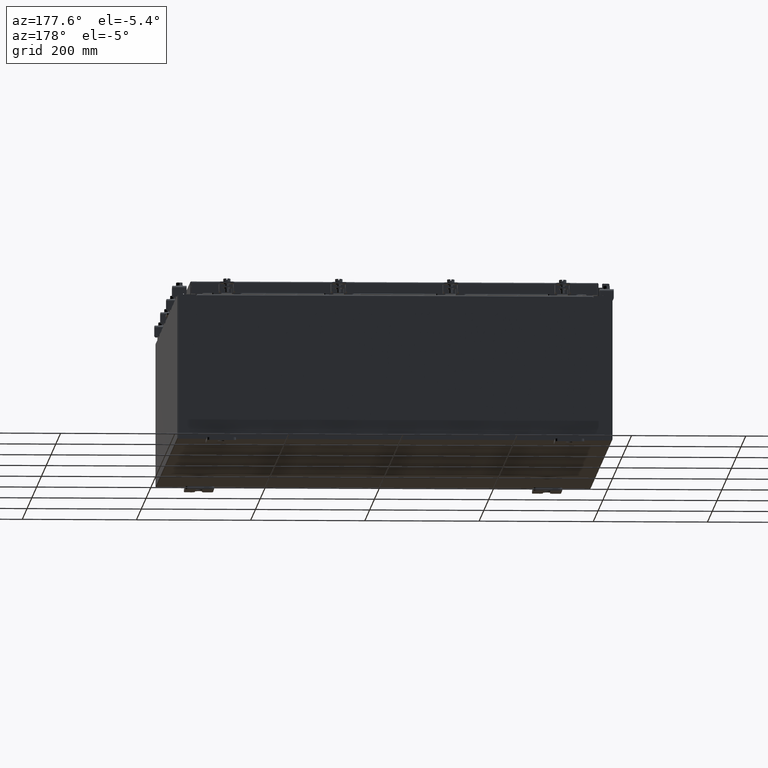
[diagram: clean part render]
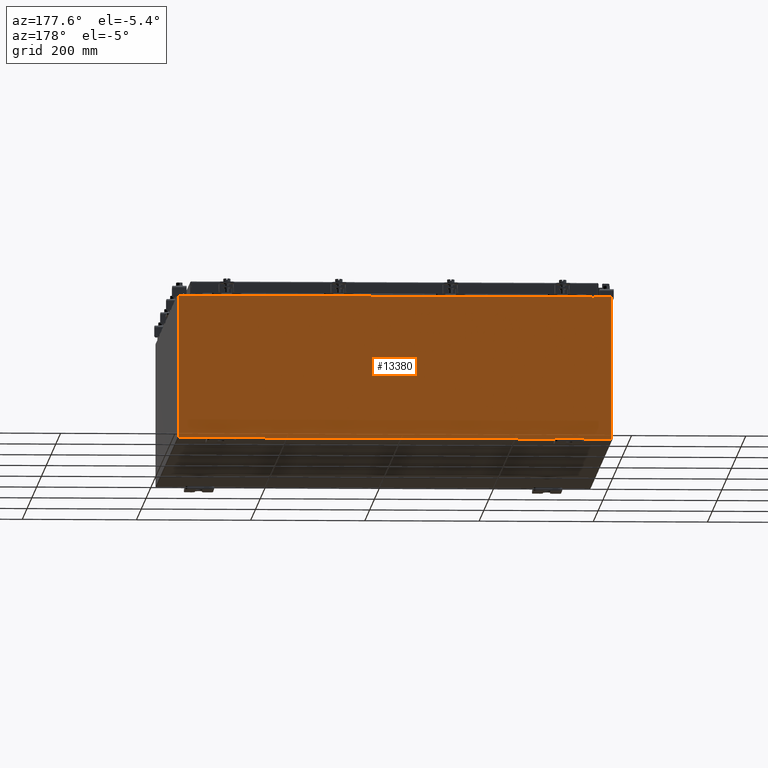
[diagram: same view with one face highlighted and labeled with its STEP entity id]
A machine part, auxiliary view. The second image highlights one B-rep face of the part: STEP entity #13380.
In plain terms, the highlighted planar face has unit normal (0, -1, 0).
Its self-contained STEP definition (entity closure, byte-faithful):
#215 = CIRCLE ( 'NONE', #17016, 0.01867499999999949400 ) ;
#441 = CARTESIAN_POINT ( 'NONE',  ( 13.67454999999978500, -0.0000000000000000000, -5.935537951421795000E-013 ) ) ;
#961 = VERTEX_POINT ( 'NONE', #13682 ) ;
#1255 = VECTOR ( 'NONE', #6354, 39.37007874015748100 ) ;
#1292 = CARTESIAN_POINT ( 'NONE',  ( -13.63720000000000000, -0.0000000000000000000, 0.0000000000000000000 ) ) ;
#1616 = CIRCLE ( 'NONE', #14262, 0.01867499999999949400 ) ;
#1868 = LINE ( 'NONE', #17819, #10542 ) ;
#2062 = VERTEX_POINT ( 'NONE', #14688 ) ;
#2189 = VERTEX_POINT ( 'NONE', #17457 ) ;
#2228 = EDGE_CURVE ( 'NONE', #12325, #16779, #1868, .T. ) ;
#2457 = CARTESIAN_POINT ( 'NONE',  ( 14.92529999999999800, 0.0000000000000000000, -4.925300000000000000 ) ) ;
#2751 = ORIENTED_EDGE ( 'NONE', *, *, #2228, .T. ) ;
#3196 = VECTOR ( 'NONE', #9836, 39.37007874015748100 ) ;
#3371 = EDGE_CURVE ( 'NONE', #2062, #22442, #21653, .T. ) ;
#3392 = VERTEX_POINT ( 'NONE', #9086 ) ;
#3538 = EDGE_CURVE ( 'NONE', #3392, #2062, #19473, .T. ) ;
#4634 = CARTESIAN_POINT ( 'NONE',  ( -13.63720000000000400, -7.171100983368691200E-016, 4.912300000000000100 ) ) ;
#4664 = ORIENTED_EDGE ( 'NONE', *, *, #20067, .F. ) ;
#4784 = VERTEX_POINT ( 'NONE', #12033 ) ;
#4810 = ORIENTED_EDGE ( 'NONE', *, *, #20111, .F. ) ;
#5221 = DIRECTION ( 'NONE',  ( 0.0000000000000000000, -0.0000000000000000000, -1.000000000000000000 ) ) ;
#5325 = CARTESIAN_POINT ( 'NONE',  ( -14.92530000000000200, 0.0000000000000000000, 4.925300000000000000 ) ) ;
#5353 = DIRECTION ( 'NONE',  ( -0.0000000000000000000, -0.0000000000000000000, 1.000000000000000000 ) ) ;
#5359 = AXIS2_PLACEMENT_3D ( 'NONE', #17320, #15638, #5221 ) ;
#5772 = CARTESIAN_POINT ( 'NONE',  ( -13.67455000000000000, -0.0000000000000000000, 0.0000000000000000000 ) ) ;
#5984 = DIRECTION ( 'NONE',  ( 0.0000000000000000000, 0.0000000000000000000, 1.000000000000000000 ) ) ;
#6019 = EDGE_CURVE ( 'NONE', #2189, #18700, #7407, .T. ) ;
#6354 = DIRECTION ( 'NONE',  ( 1.000000000000000000, 0.0000000000000000000, 0.0000000000000000000 ) ) ;
#6482 = LINE ( 'NONE', #5772, #15173 ) ;
#6671 = CARTESIAN_POINT ( 'NONE',  ( 13.65587499999999800, 0.0000000000000000000, 4.874950000000000100 ) ) ;
#6880 = EDGE_LOOP ( 'NONE', ( #12264, #8047, #4664, #13789, #10513, #4810, #19324, #21758, #2751, #17268, #10297, #7154 ) ) ;
#7154 = ORIENTED_EDGE ( 'NONE', *, *, #3371, .T. ) ;
#7407 = LINE ( 'NONE', #441, #16094 ) ;
#7488 = LINE ( 'NONE', #18393, #20242 ) ;
#8006 = DIRECTION ( 'NONE',  ( 1.000000000000000000, 0.0000000000000000000, 0.0000000000000000000 ) ) ;
#8022 = DIRECTION ( 'NONE',  ( -4.340572780400004900E-014, 0.0000000000000000000, -1.000000000000000000 ) ) ;
#8027 = CARTESIAN_POINT ( 'NONE',  ( 13.67454999999999800, 0.0000000000000000000, 4.874950000000000100 ) ) ;
#8047 = ORIENTED_EDGE ( 'NONE', *, *, #13452, .F. ) ;
#8160 = EDGE_CURVE ( 'NONE', #2189, #12325, #7488, .T. ) ;
#8434 = DIRECTION ( 'NONE',  ( 0.0000000000000000000, 0.0000000000000000000, -1.000000000000000000 ) ) ;
#8967 = DIRECTION ( 'NONE',  ( -0.0000000000000000000, 1.000000000000000000, -0.0000000000000000000 ) ) ;
#9036 = CARTESIAN_POINT ( 'NONE',  ( -13.63720000000000000, -0.0000000000000000000, 4.874950000000000100 ) ) ;
#9086 = CARTESIAN_POINT ( 'NONE',  ( -14.92530000000000200, 0.0000000000000000000, -4.925300000000000000 ) ) ;
#9700 = CARTESIAN_POINT ( 'NONE',  ( -14.92530000000000200, 0.0000000000000000000, 4.925300000000000000 ) ) ;
#9836 = DIRECTION ( 'NONE',  ( 1.000000000000000000, 0.0000000000000000000, 0.0000000000000000000 ) ) ;
#10071 = CARTESIAN_POINT ( 'NONE',  ( -13.63720000000000000, -7.171100983368691200E-016, 4.912300000000000100 ) ) ;
#10297 = ORIENTED_EDGE ( 'NONE', *, *, #3538, .T. ) ;
#10513 = ORIENTED_EDGE ( 'NONE', *, *, #22296, .F. ) ;
#10520 = VECTOR ( 'NONE', #20729, 39.37007874015748100 ) ;
#10542 = VECTOR ( 'NONE', #21048, 39.37007874015748100 ) ;
#10918 = VERTEX_POINT ( 'NONE', #10071 ) ;
#11895 = CARTESIAN_POINT ( 'NONE',  ( 14.92529999999999800, 0.0000000000000000000, 4.925300000000000000 ) ) ;
#12033 = CARTESIAN_POINT ( 'NONE',  ( -13.67455000000000000, 0.0000000000000000000, 4.874950000000000100 ) ) ;
#12160 = CARTESIAN_POINT ( 'NONE',  ( -14.92530000000000200, 0.0000000000000000000, -4.925300000000000000 ) ) ;
#12264 = ORIENTED_EDGE ( 'NONE', *, *, #14176, .F. ) ;
#12325 = VERTEX_POINT ( 'NONE', #11895 ) ;
#13193 = VECTOR ( 'NONE', #5984, 39.37007874015748100 ) ;
#13380 = ADVANCED_FACE ( 'NONE', ( #21403 ), #13891, .F. ) ;
#13452 = EDGE_CURVE ( 'NONE', #13487, #4784, #215, .T. ) ;
#13487 = VERTEX_POINT ( 'NONE', #9036 ) ;
#13682 = CARTESIAN_POINT ( 'NONE',  ( 13.63719999999999800, 0.0000000000000000000, 4.912300000000000100 ) ) ;
#13730 = LINE ( 'NONE', #18123, #13193 ) ;
#13789 = ORIENTED_EDGE ( 'NONE', *, *, #15569, .T. ) ;
#13891 = PLANE ( 'NONE',  #5359 ) ;
#14176 = EDGE_CURVE ( 'NONE', #4784, #22442, #6482, .T. ) ;
#14262 = AXIS2_PLACEMENT_3D ( 'NONE', #6671, #18826, #8434 ) ;
#14310 = VECTOR ( 'NONE', #5353, 39.37007874015748100 ) ;
#14688 = CARTESIAN_POINT ( 'NONE',  ( -14.92530000000000200, 0.0000000000000000000, 4.925300000000000000 ) ) ;
#15142 = LINE ( 'NONE', #12160, #10520 ) ;
#15173 = VECTOR ( 'NONE', #21424, 39.37007874015748100 ) ;
#15569 = EDGE_CURVE ( 'NONE', #10918, #961, #20779, .T. ) ;
#15638 = DIRECTION ( 'NONE',  ( 0.0000000000000000000, -1.000000000000000000, 0.0000000000000000000 ) ) ;
#16094 = VECTOR ( 'NONE', #8022, 39.37007874015748100 ) ;
#16779 = VERTEX_POINT ( 'NONE', #2457 ) ;
#17016 = AXIS2_PLACEMENT_3D ( 'NONE', #19350, #8967, #21072 ) ;
#17268 = ORIENTED_EDGE ( 'NONE', *, *, #20834, .T. ) ;
#17320 = CARTESIAN_POINT ( 'NONE',  ( 0.0000000000000000000, 0.0000000000000000000, 0.0000000000000000000 ) ) ;
#17457 = CARTESIAN_POINT ( 'NONE',  ( 13.67455000000000000, 0.0000000000000000000, 4.925300000000000000 ) ) ;
#17819 = CARTESIAN_POINT ( 'NONE',  ( 14.92529999999999800, 0.0000000000000000000, 4.925300000000000000 ) ) ;
#18123 = CARTESIAN_POINT ( 'NONE',  ( 13.63719999999999800, 0.0000000000000000000, 0.0000000000000000000 ) ) ;
#18393 = CARTESIAN_POINT ( 'NONE',  ( -14.92530000000000200, 0.0000000000000000000, 4.925300000000000000 ) ) ;
#18700 = VERTEX_POINT ( 'NONE', #8027 ) ;
#18826 = DIRECTION ( 'NONE',  ( -0.0000000000000000000, 1.000000000000000000, -0.0000000000000000000 ) ) ;
#19324 = ORIENTED_EDGE ( 'NONE', *, *, #6019, .F. ) ;
#19350 = CARTESIAN_POINT ( 'NONE',  ( -13.65587500000000000, 0.0000000000000000000, 4.874950000000000100 ) ) ;
#19473 = LINE ( 'NONE', #5325, #14310 ) ;
#20046 = VECTOR ( 'NONE', #20407, 39.37007874015748100 ) ;
#20067 = EDGE_CURVE ( 'NONE', #10918, #13487, #20599, .T. ) ;
#20111 = EDGE_CURVE ( 'NONE', #18700, #21890, #1616, .T. ) ;
#20242 = VECTOR ( 'NONE', #8006, 39.37007874015748100 ) ;
#20316 = CARTESIAN_POINT ( 'NONE',  ( -13.67455000000000000, 0.0000000000000000000, 4.925300000000000000 ) ) ;
#20338 = CARTESIAN_POINT ( 'NONE',  ( 13.63719999999999800, 0.0000000000000000000, 4.874950000000000100 ) ) ;
#20407 = DIRECTION ( 'NONE',  ( 0.0000000000000000000, 0.0000000000000000000, -1.000000000000000000 ) ) ;
#20599 = LINE ( 'NONE', #1292, #20046 ) ;
#20729 = DIRECTION ( 'NONE',  ( -1.000000000000000000, -0.0000000000000000000, -0.0000000000000000000 ) ) ;
#20779 = LINE ( 'NONE', #4634, #1255 ) ;
#20834 = EDGE_CURVE ( 'NONE', #16779, #3392, #15142, .T. ) ;
#21048 = DIRECTION ( 'NONE',  ( 0.0000000000000000000, 0.0000000000000000000, -1.000000000000000000 ) ) ;
#21072 = DIRECTION ( 'NONE',  ( 0.0000000000000000000, 0.0000000000000000000, -1.000000000000000000 ) ) ;
#21403 = FACE_OUTER_BOUND ( 'NONE', #6880, .T. ) ;
#21424 = DIRECTION ( 'NONE',  ( 0.0000000000000000000, 0.0000000000000000000, 1.000000000000000000 ) ) ;
#21653 = LINE ( 'NONE', #9700, #3196 ) ;
#21758 = ORIENTED_EDGE ( 'NONE', *, *, #8160, .T. ) ;
#21890 = VERTEX_POINT ( 'NONE', #20338 ) ;
#22296 = EDGE_CURVE ( 'NONE', #21890, #961, #13730, .T. ) ;
#22442 = VERTEX_POINT ( 'NONE', #20316 ) ;